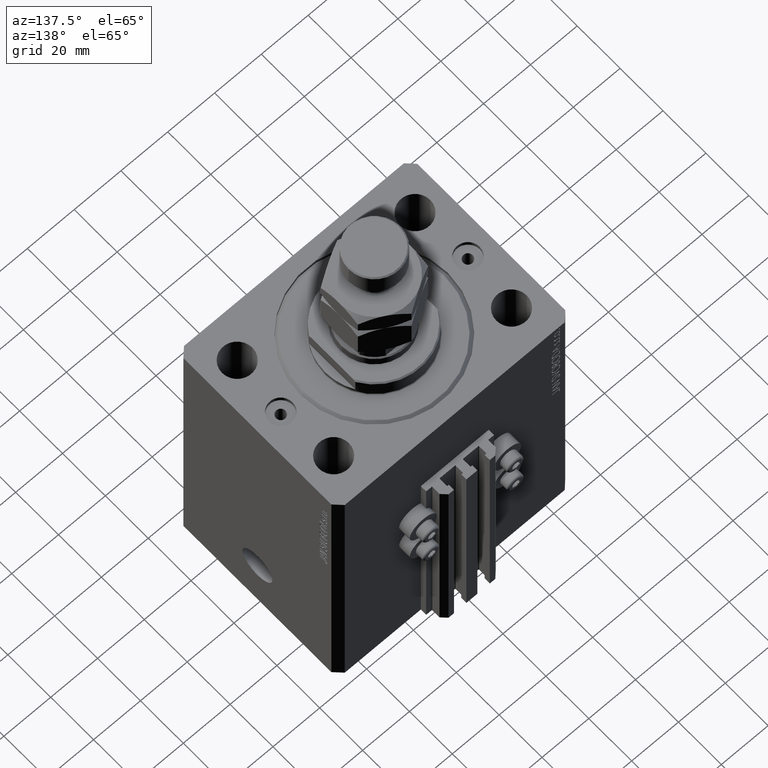
[diagram: clean part render]
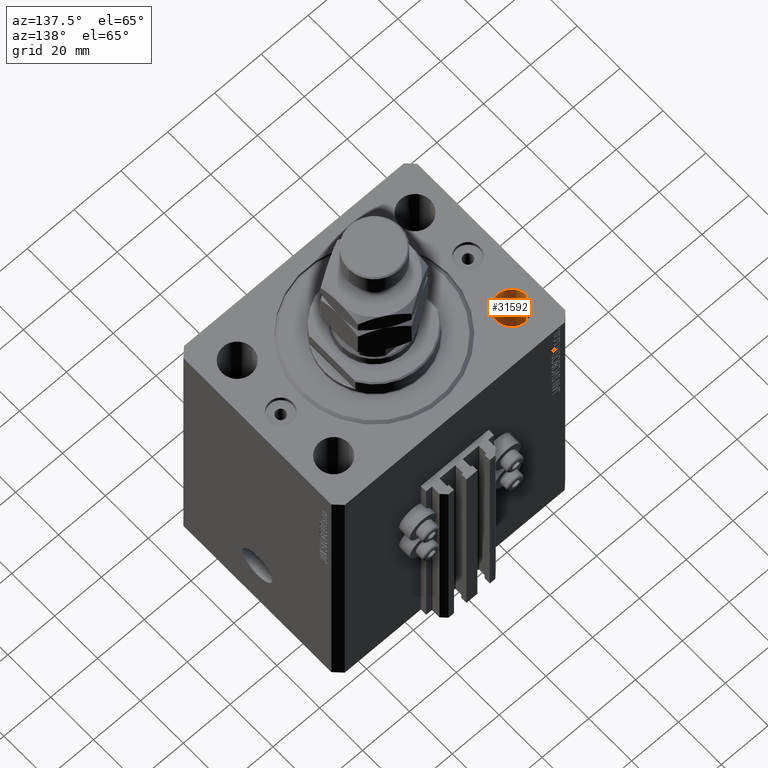
[diagram: same view with one face highlighted and labeled with its STEP entity id]
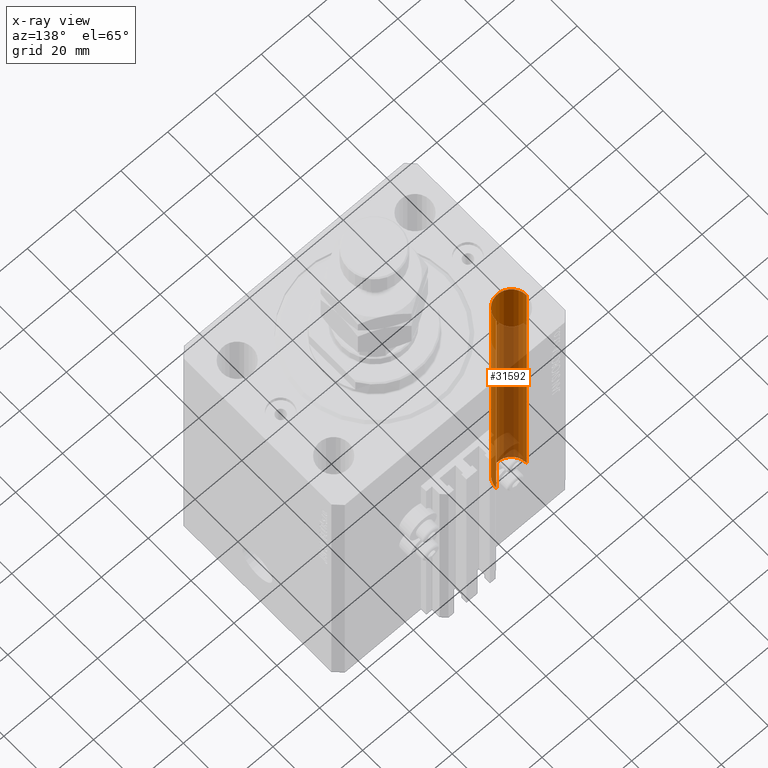
[diagram: x-ray of the same camera — body ghosted, the highlighted face saturated]
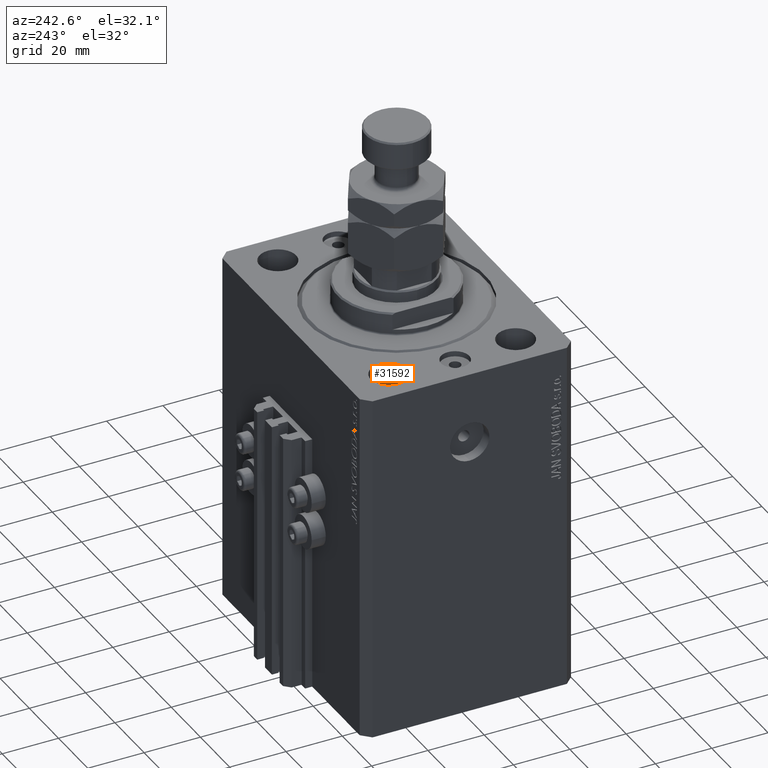
[diagram: same view with one face highlighted and labeled with its STEP entity id]
A machine part, auxiliary view. The second image highlights one B-rep face of the part: STEP entity #31592.
The next image is the same camera in x-ray: the body ghosted, the highlighted face saturated — about 79% of this face is hidden behind the body in this view.
A second angle (auxiliary view) of the same face is appended — the face is thin or edge-on in the first view.
In plain terms, the highlighted cylindrical surface (edge-blend (fillet) strip) has radius 6.5 mm, axis along (0, 0, 1).
Its self-contained STEP definition (entity closure, byte-faithful):
#648 = DIRECTION ( 'NONE',  ( -0.000000000000000000, -0.000000000000000000, 1.000000000000000000 ) ) ;
#1596 = ORIENTED_EDGE ( 'NONE', *, *, #47069, .F. ) ;
#2005 = EDGE_CURVE ( 'NONE', #39923, #38886, #45034, .T. ) ;
#3852 = ORIENTED_EDGE ( 'NONE', *, *, #25768, .T. ) ;
#3867 = DIRECTION ( 'NONE',  ( -0.000000000000000000, -0.000000000000000000, 1.000000000000000000 ) ) ;
#4193 = DIRECTION ( 'NONE',  ( -0.000000000000000000, -0.000000000000000000, 1.000000000000000000 ) ) ;
#4327 = EDGE_LOOP ( 'NONE', ( #3852, #16075, #39473, #1596 ) ) ;
#5967 = CARTESIAN_POINT ( 'NONE',  ( -31.50000000000000000, 22.49999999999999645, -125.0000000000000000 ) ) ;
#9864 = DIRECTION ( 'NONE',  ( 0.000000000000000000, 0.000000000000000000, 1.000000000000000000 ) ) ;
#12268 = DIRECTION ( 'NONE',  ( 1.000000000000000000, 0.000000000000000000, 0.000000000000000000 ) ) ;
#14916 = CARTESIAN_POINT ( 'NONE',  ( -31.50000000000000000, 22.49999999999999645, 0.000000000000000000 ) ) ;
#16075 = ORIENTED_EDGE ( 'NONE', *, *, #2005, .T. ) ;
#19329 = CARTESIAN_POINT ( 'NONE',  ( -38.00000000000000000, 22.49999999999999645, -125.0000000000000000 ) ) ;
#21596 = CARTESIAN_POINT ( 'NONE',  ( -44.50000000000000000, 22.49999999999999645, -125.0000000000000000 ) ) ;
#23381 = CARTESIAN_POINT ( 'NONE',  ( -38.00000000000000000, 22.49999999999999645, -143.3847763108502136 ) ) ;
#23626 = FACE_OUTER_BOUND ( 'NONE', #4327, .T. ) ;
#24988 = VECTOR ( 'NONE', #3867, 1000.000000000000000 ) ;
#25768 = EDGE_CURVE ( 'NONE', #28588, #39923, #30394, .T. ) ;
#26369 = EDGE_CURVE ( 'NONE', #38886, #43111, #43082, .T. ) ;
#28588 = VERTEX_POINT ( 'NONE', #5967 ) ;
#30140 = AXIS2_PLACEMENT_3D ( 'NONE', #23381, #648, #12268 ) ;
#30394 = CIRCLE ( 'NONE', #36739, 6.499999999999999112 ) ;
#31592 = ADVANCED_FACE ( 'NONE', ( #23626 ), #35523, .F. ) ;
#32032 = AXIS2_PLACEMENT_3D ( 'NONE', #43737, #9864, #46970 ) ;
#33700 = DIRECTION ( 'NONE',  ( -0.000000000000000000, -0.000000000000000000, -1.000000000000000000 ) ) ;
#34432 = DIRECTION ( 'NONE',  ( 1.000000000000000000, 0.000000000000000000, 0.000000000000000000 ) ) ;
#35523 = CYLINDRICAL_SURFACE ( 'NONE', #30140, 6.499999999999999112 ) ;
#36739 = AXIS2_PLACEMENT_3D ( 'NONE', #19329, #33700, #34432 ) ;
#37757 = CARTESIAN_POINT ( 'NONE',  ( -31.50000000000000000, 22.49999999999999645, -143.3847763108502136 ) ) ;
#38886 = VERTEX_POINT ( 'NONE', #47563 ) ;
#39473 = ORIENTED_EDGE ( 'NONE', *, *, #26369, .T. ) ;
#39923 = VERTEX_POINT ( 'NONE', #21596 ) ;
#40064 = VECTOR ( 'NONE', #4193, 1000.000000000000000 ) ;
#41810 = CARTESIAN_POINT ( 'NONE',  ( -44.50000000000000000, 22.49999999999999645, -143.3847763108502136 ) ) ;
#43082 = CIRCLE ( 'NONE', #32032, 6.499999999999999112 ) ;
#43111 = VERTEX_POINT ( 'NONE', #14916 ) ;
#43737 = CARTESIAN_POINT ( 'NONE',  ( -38.00000000000000000, 22.49999999999999645, 0.000000000000000000 ) ) ;
#44940 = LINE ( 'NONE', #37757, #24988 ) ;
#45034 = LINE ( 'NONE', #41810, #40064 ) ;
#46970 = DIRECTION ( 'NONE',  ( 1.000000000000000000, 0.000000000000000000, 0.000000000000000000 ) ) ;
#47069 = EDGE_CURVE ( 'NONE', #28588, #43111, #44940, .T. ) ;
#47563 = CARTESIAN_POINT ( 'NONE',  ( -44.50000000000000000, 22.49999999999999645, 0.000000000000000000 ) ) ;